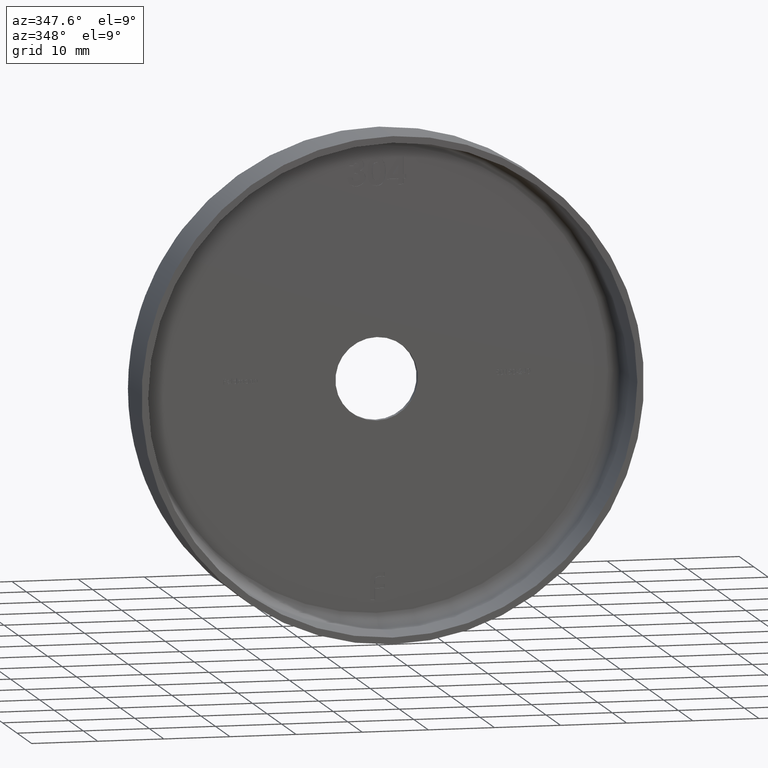
[diagram: clean part render]
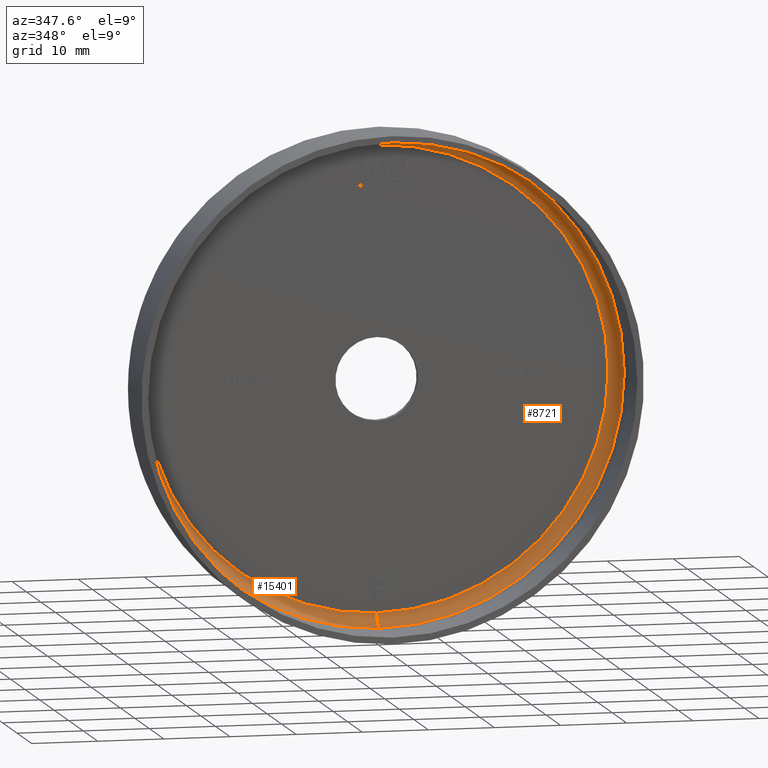
[diagram: same view with one multi-face feature highlighted, each face labeled with its STEP entity id]
A machine part, auxiliary view. The highlighted faces form ONE feature: a constant-radius fillet chain: 2 tangent blend faces with common blend radius 2 mm. The faces share edges in the B-rep.
Their STEP definitions:
[1] entity #15401 (Torus):
#46 = DIRECTION ( 'NONE',  ( -1.000000000000000000, 0.000000000000000000, 0.000000000000000000 ) ) ;
#194 = ORIENTED_EDGE ( 'NONE', *, *, #15225, .T. ) ;
#286 = DIRECTION ( 'NONE',  ( -0.000000000000000000, -1.000000000000000000, -0.000000000000000000 ) ) ;
#916 = CIRCLE ( 'NONE', #11800, 37.00000000000000711 ) ;
#1239 = AXIS2_PLACEMENT_3D ( 'NONE', #14895, #46, #3912 ) ;
#1394 = AXIS2_PLACEMENT_3D ( 'NONE', #6571, #6203, #7447 ) ;
#1500 = CARTESIAN_POINT ( 'NONE',  ( 0.000000000000000000, 11.00000000000000178, -35.00000000000000000 ) ) ;
#1684 = CARTESIAN_POINT ( 'NONE',  ( 0.000000000000000000, 9.000000000000001776, 0.000000000000000000 ) ) ;
#2456 = VERTEX_POINT ( 'NONE', #9976 ) ;
#2470 = CARTESIAN_POINT ( 'NONE',  ( 0.000000000000000000, 9.000000000000001776, 0.000000000000000000 ) ) ;
#2808 = CIRCLE ( 'NONE', #1239, 2.000000000000001776 ) ;
#3912 = DIRECTION ( 'NONE',  ( 0.000000000000000000, 0.000000000000000000, 1.000000000000000000 ) ) ;
#4671 = EDGE_CURVE ( 'NONE', #16038, #2456, #2808, .T. ) ;
#5004 = FACE_OUTER_BOUND ( 'NONE', #9756, .T. ) ;
#5188 = CARTESIAN_POINT ( 'NONE',  ( 4.408728476930472433E-15, 11.00000000000000178, 35.00000000000000000 ) ) ;
#6203 = DIRECTION ( 'NONE',  ( 1.000000000000000000, 0.000000000000000000, -1.224646799147353207E-16 ) ) ;
#6420 = CIRCLE ( 'NONE', #1394, 2.000000000000001776 ) ;
#6422 = DIRECTION ( 'NONE',  ( -0.000000000000000000, -1.000000000000000000, -0.000000000000000000 ) ) ;
#6468 = DIRECTION ( 'NONE',  ( 0.000000000000000000, 0.000000000000000000, -1.000000000000000000 ) ) ;
#6571 = CARTESIAN_POINT ( 'NONE',  ( 4.286263797015736496E-15, 9.000000000000001776, 35.00000000000000000 ) ) ;
#7447 = DIRECTION ( 'NONE',  ( -1.224646799147353454E-16, 0.000000000000000000, -1.000000000000000000 ) ) ;
#8589 = AXIS2_PLACEMENT_3D ( 'NONE', #13782, #286, #10068 ) ;
#8968 = VERTEX_POINT ( 'NONE', #5188 ) ;
#9533 = VERTEX_POINT ( 'NONE', #13823 ) ;
#9756 = EDGE_LOOP ( 'NONE', ( #9840, #12436, #194, #11274 ) ) ;
#9840 = ORIENTED_EDGE ( 'NONE', *, *, #12319, .F. ) ;
#9976 = CARTESIAN_POINT ( 'NONE',  ( 0.000000000000000000, 9.000000000000001776, -37.00000000000000711 ) ) ;
#10068 = DIRECTION ( 'NONE',  ( 0.000000000000000000, 0.000000000000000000, -1.000000000000000000 ) ) ;
#10123 = DIRECTION ( 'NONE',  ( -0.000000000000000000, -1.000000000000000000, -0.000000000000000000 ) ) ;
#10770 = EDGE_CURVE ( 'NONE', #8968, #9533, #6420, .T. ) ;
#11274 = ORIENTED_EDGE ( 'NONE', *, *, #4671, .F. ) ;
#11318 = DIRECTION ( 'NONE',  ( 0.000000000000000000, 0.000000000000000000, -1.000000000000000000 ) ) ;
#11502 = AXIS2_PLACEMENT_3D ( 'NONE', #1684, #6422, #6468 ) ;
#11800 = AXIS2_PLACEMENT_3D ( 'NONE', #2470, #10123, #11318 ) ;
#12319 = EDGE_CURVE ( 'NONE', #8968, #16038, #16077, .T. ) ;
#12436 = ORIENTED_EDGE ( 'NONE', *, *, #10770, .T. ) ;
#13782 = CARTESIAN_POINT ( 'NONE',  ( 0.000000000000000000, 11.00000000000000178, 0.000000000000000000 ) ) ;
#13823 = CARTESIAN_POINT ( 'NONE',  ( 4.531193156845207581E-15, 9.000000000000001776, 37.00000000000000711 ) ) ;
#14493 = TOROIDAL_SURFACE ( 'NONE', #11502, 35.00000000000000000, 2.000000000000000000 ) ;
#14895 = CARTESIAN_POINT ( 'NONE',  ( 0.000000000000000000, 9.000000000000001776, -35.00000000000000000 ) ) ;
#15225 = EDGE_CURVE ( 'NONE', #9533, #2456, #916, .T. ) ;
#15401 = ADVANCED_FACE ( 'NONE', ( #5004 ), #14493, .F. ) ;
#16038 = VERTEX_POINT ( 'NONE', #1500 ) ;
#16077 = CIRCLE ( 'NONE', #8589, 35.00000000000000000 ) ;
[2] entity #8721 (Torus):
#46 = DIRECTION ( 'NONE',  ( -1.000000000000000000, 0.000000000000000000, 0.000000000000000000 ) ) ;
#407 = FACE_OUTER_BOUND ( 'NONE', #10896, .T. ) ;
#1239 = AXIS2_PLACEMENT_3D ( 'NONE', #14895, #46, #3912 ) ;
#1394 = AXIS2_PLACEMENT_3D ( 'NONE', #6571, #6203, #7447 ) ;
#1416 = CARTESIAN_POINT ( 'NONE',  ( 0.000000000000000000, 11.00000000000000178, 0.000000000000000000 ) ) ;
#1500 = CARTESIAN_POINT ( 'NONE',  ( 0.000000000000000000, 11.00000000000000178, -35.00000000000000000 ) ) ;
#2456 = VERTEX_POINT ( 'NONE', #9976 ) ;
#2808 = CIRCLE ( 'NONE', #1239, 2.000000000000001776 ) ;
#2841 = EDGE_CURVE ( 'NONE', #2456, #9533, #6517, .T. ) ;
#3103 = ORIENTED_EDGE ( 'NONE', *, *, #4671, .T. ) ;
#3567 = CIRCLE ( 'NONE', #7809, 35.00000000000000000 ) ;
#3912 = DIRECTION ( 'NONE',  ( 0.000000000000000000, 0.000000000000000000, 1.000000000000000000 ) ) ;
#4428 = DIRECTION ( 'NONE',  ( -0.000000000000000000, -1.000000000000000000, -0.000000000000000000 ) ) ;
#4671 = EDGE_CURVE ( 'NONE', #16038, #2456, #2808, .T. ) ;
#5188 = CARTESIAN_POINT ( 'NONE',  ( 4.408728476930472433E-15, 11.00000000000000178, 35.00000000000000000 ) ) ;
#5218 = AXIS2_PLACEMENT_3D ( 'NONE', #13583, #8788, #11067 ) ;
#6203 = DIRECTION ( 'NONE',  ( 1.000000000000000000, 0.000000000000000000, -1.224646799147353207E-16 ) ) ;
#6420 = CIRCLE ( 'NONE', #1394, 2.000000000000001776 ) ;
#6491 = EDGE_CURVE ( 'NONE', #16038, #8968, #3567, .T. ) ;
#6517 = CIRCLE ( 'NONE', #7998, 37.00000000000000711 ) ;
#6571 = CARTESIAN_POINT ( 'NONE',  ( 4.286263797015736496E-15, 9.000000000000001776, 35.00000000000000000 ) ) ;
#7393 = DIRECTION ( 'NONE',  ( -0.000000000000000000, -1.000000000000000000, -0.000000000000000000 ) ) ;
#7438 = DIRECTION ( 'NONE',  ( 0.000000000000000000, 0.000000000000000000, -1.000000000000000000 ) ) ;
#7447 = DIRECTION ( 'NONE',  ( -1.224646799147353454E-16, 0.000000000000000000, -1.000000000000000000 ) ) ;
#7809 = AXIS2_PLACEMENT_3D ( 'NONE', #1416, #7393, #7438 ) ;
#7998 = AXIS2_PLACEMENT_3D ( 'NONE', #15615, #4428, #11954 ) ;
#8721 = ADVANCED_FACE ( 'NONE', ( #407 ), #8976, .F. ) ;
#8788 = DIRECTION ( 'NONE',  ( -0.000000000000000000, -1.000000000000000000, -0.000000000000000000 ) ) ;
#8968 = VERTEX_POINT ( 'NONE', #5188 ) ;
#8976 = TOROIDAL_SURFACE ( 'NONE', #5218, 35.00000000000000000, 2.000000000000000000 ) ;
#9533 = VERTEX_POINT ( 'NONE', #13823 ) ;
#9976 = CARTESIAN_POINT ( 'NONE',  ( 0.000000000000000000, 9.000000000000001776, -37.00000000000000711 ) ) ;
#10770 = EDGE_CURVE ( 'NONE', #8968, #9533, #6420, .T. ) ;
#10896 = EDGE_LOOP ( 'NONE', ( #13705, #14245, #3103, #11859 ) ) ;
#11067 = DIRECTION ( 'NONE',  ( 0.000000000000000000, 0.000000000000000000, -1.000000000000000000 ) ) ;
#11859 = ORIENTED_EDGE ( 'NONE', *, *, #2841, .T. ) ;
#11954 = DIRECTION ( 'NONE',  ( 0.000000000000000000, 0.000000000000000000, -1.000000000000000000 ) ) ;
#13583 = CARTESIAN_POINT ( 'NONE',  ( 0.000000000000000000, 9.000000000000001776, 0.000000000000000000 ) ) ;
#13705 = ORIENTED_EDGE ( 'NONE', *, *, #10770, .F. ) ;
#13823 = CARTESIAN_POINT ( 'NONE',  ( 4.531193156845207581E-15, 9.000000000000001776, 37.00000000000000711 ) ) ;
#14245 = ORIENTED_EDGE ( 'NONE', *, *, #6491, .F. ) ;
#14895 = CARTESIAN_POINT ( 'NONE',  ( 0.000000000000000000, 9.000000000000001776, -35.00000000000000000 ) ) ;
#15615 = CARTESIAN_POINT ( 'NONE',  ( 0.000000000000000000, 9.000000000000001776, 0.000000000000000000 ) ) ;
#16038 = VERTEX_POINT ( 'NONE', #1500 ) ;